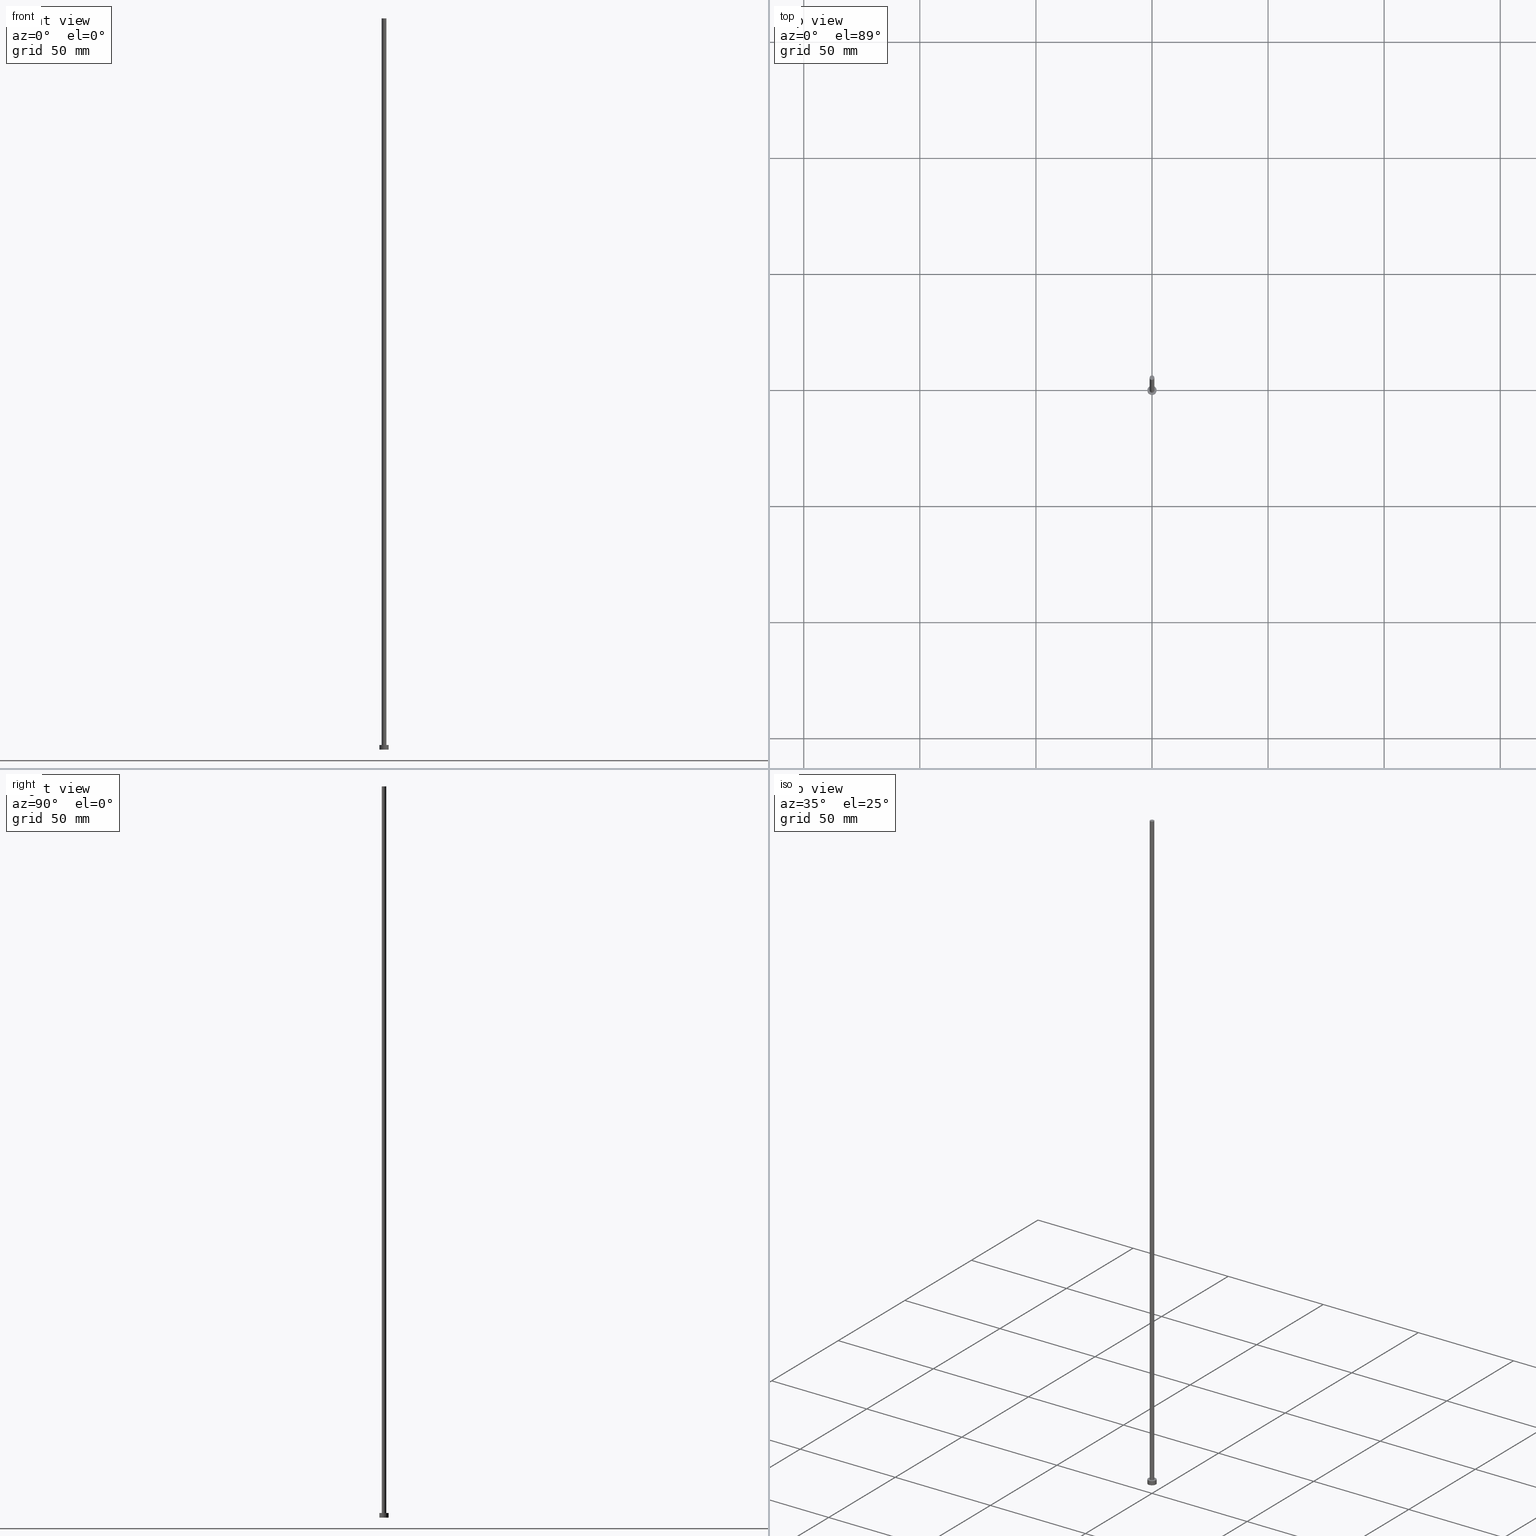
[diagram: canonical four-view strip — front | top / right | iso, engineering-drawing reading convention]
A machine part, canonical four-view strip (front | top / right | iso — engineering-drawing reading convention). The complete STEP part file that produces these views, byte-faithful:
ISO-10303-21;
HEADER;
FILE_DESCRIPTION (( 'STEP AP203' ),
    '1' );
FILE_NAME ('3bc7.STEP',
    '2023-02-13T15:59:04',
    ( '' ),
    ( '' ),
    'SwSTEP 2.0',
    'SolidWorks 2019',
    '' );
FILE_SCHEMA (( 'CONFIG_CONTROL_DESIGN' ));
ENDSEC;

DATA;
#1 = DIRECTION ( 'NONE',  ( -0.000000000000000000, -0.000000000000000000, -1.000000000000000000 ) ) ;
#2 = APPROVAL_PERSON_ORGANIZATION ( #114, #113, #96 ) ;
#3 = CARTESIAN_POINT ( 'NONE',  ( 1.000000000000000000, 1.224646799147353207E-16, 315.0000000000000000 ) ) ;
#4 = DATE_TIME_ROLE ( 'classification_date' ) ;
#5 = ADVANCED_FACE ( 'NONE', ( #126 ), #123, .F. ) ;
#6 = LOCAL_TIME ( 16, 59, 4.000000000000000000, #30 ) ;
#7 = CARTESIAN_POINT ( 'NONE',  ( -2.000000000000000000, 0.000000000000000000, 0.000000000000000000 ) ) ;
#8 = CIRCLE ( 'NONE', #194, 2.000000000000000000 ) ;
#9 = CALENDAR_DATE ( 2023, 13, 2 ) ;
#10 = DIRECTION ( 'NONE',  ( -0.000000000000000000, -0.000000000000000000, -1.000000000000000000 ) ) ;
#11 = DIRECTION ( 'NONE',  ( -0.000000000000000000, -0.000000000000000000, -1.000000000000000000 ) ) ;
#12 = CC_DESIGN_PERSON_AND_ORGANIZATION_ASSIGNMENT ( #173, #98, ( #23 ) ) ;
#13 = FACE_OUTER_BOUND ( 'NONE', #183, .T. ) ;
#14 = DIRECTION ( 'NONE',  ( 0.000000000000000000, 0.000000000000000000, 1.000000000000000000 ) ) ;
#15 = EDGE_LOOP ( 'NONE', ( #116, #82, #224, #25 ) ) ;
#16 = PERSON_AND_ORGANIZATION ( #83, #165 ) ;
#17 = CARTESIAN_POINT ( 'NONE',  ( 0.000000000000000000, 0.000000000000000000, 0.000000000000000000 ) ) ;
#18 = CARTESIAN_POINT ( 'NONE',  ( -2.000000000000000000, 0.000000000000000000, 2.000000000000000000 ) ) ;
#19 = CARTESIAN_POINT ( 'NONE',  ( 0.000000000000000000, 0.000000000000000000, 2.000000000000000000 ) ) ;
#20 = PERSON_AND_ORGANIZATION ( #83, #165 ) ;
#21 = LINE ( 'NONE', #66, #225 ) ;
#22 = AXIS2_PLACEMENT_3D ( 'NONE', #136, #74, #217 ) ;
#23 = PRODUCT_DEFINITION ( 'NEZN�M�', '', #208, #162 ) ;
#24 = CARTESIAN_POINT ( 'NONE',  ( 0.000000000000000000, 0.000000000000000000, 2.000000000000000000 ) ) ;
#25 = ORIENTED_EDGE ( 'NONE', *, *, #68, .F. ) ;
#26 = DIRECTION ( 'NONE',  ( 1.000000000000000000, 0.000000000000000000, 0.000000000000000000 ) ) ;
#27 = CARTESIAN_POINT ( 'NONE',  ( 0.000000000000000000, 0.000000000000000000, 0.000000000000000000 ) ) ;
#28 = SHAPE_DEFINITION_REPRESENTATION ( #48, #186 ) ;
#29 = AXIS2_PLACEMENT_3D ( 'NONE', #79, #220, #31 ) ;
#30 = COORDINATED_UNIVERSAL_TIME_OFFSET ( 1, 0, .AHEAD. ) ;
#31 = DIRECTION ( 'NONE',  ( 1.000000000000000000, 0.000000000000000000, 0.000000000000000000 ) ) ;
#32 = CARTESIAN_POINT ( 'NONE',  ( 1.000000000000000000, 1.224646799147353207E-16, 2.000000000000000000 ) ) ;
#33 = EDGE_CURVE ( 'NONE', #248, #198, #21, .T. ) ;
#34 = LINE ( 'NONE', #202, #45 ) ;
#35 = FACE_OUTER_BOUND ( 'NONE', #15, .T. ) ;
#36 = APPROVAL_DATE_TIME ( #75, #113 ) ;
#37 = APPROVAL_ROLE ( '' ) ;
#38 = APPLICATION_CONTEXT ( 'configuration controlled 3d designs of mechanical parts and assemblies' ) ;
#39 = PERSON_AND_ORGANIZATION_ROLE ( 'classification_officer' ) ;
#40 = ORIENTED_EDGE ( 'NONE', *, *, #77, .T. ) ;
#41 = DIRECTION ( 'NONE',  ( 1.000000000000000000, 0.000000000000000000, 0.000000000000000000 ) ) ;
#42 = CIRCLE ( 'NONE', #29, 1.000000000000000000 ) ;
#43 = VERTEX_POINT ( 'NONE', #18 ) ;
#44 = EDGE_LOOP ( 'NONE', ( #229, #163 ) ) ;
#45 = VECTOR ( 'NONE', #81, 1000.000000000000000 ) ;
#46 = PERSON_AND_ORGANIZATION_ROLE ( 'design_owner' ) ;
#47 = CARTESIAN_POINT ( 'NONE',  ( 0.000000000000000000, 0.000000000000000000, 2.000000000000000000 ) ) ;
#48 = PRODUCT_DEFINITION_SHAPE ( 'NONE', 'NONE',  #23 ) ;
#49 = CC_DESIGN_PERSON_AND_ORGANIZATION_ASSIGNMENT ( #16, #254, ( #208 ) ) ;
#50 = CARTESIAN_POINT ( 'NONE',  ( 0.000000000000000000, 0.000000000000000000, 2.000000000000000000 ) ) ;
#51 = LOCAL_TIME ( 16, 59, 4.000000000000000000, #174 ) ;
#52 = DIRECTION ( 'NONE',  ( -0.000000000000000000, -0.000000000000000000, -1.000000000000000000 ) ) ;
#53 = CIRCLE ( 'NONE', #235, 1.000000000000000000 ) ;
#54 = DIRECTION ( 'NONE',  ( 1.000000000000000000, 0.000000000000000000, 0.000000000000000000 ) ) ;
#55 = PERSON_AND_ORGANIZATION_ROLE ( 'design_supplier' ) ;
#56 = PRODUCT_RELATED_PRODUCT_CATEGORY ( 'detail', '', ( #214 ) ) ;
#57 = CARTESIAN_POINT ( 'NONE',  ( 1.000000000000000000, 1.224646799147353207E-16, 315.0000000000000000 ) ) ;
#58 = DATE_TIME_ROLE ( 'creation_date' ) ;
#59 = AXIS2_PLACEMENT_3D ( 'NONE', #19, #93, #54 ) ;
#60 = ADVANCED_FACE ( 'NONE', ( #35 ), #247, .T. ) ;
#61 = AXIS2_PLACEMENT_3D ( 'NONE', #17, #240, #212 ) ;
#62 = PLANE ( 'NONE',  #94 ) ;
#63 = ORIENTED_EDGE ( 'NONE', *, *, #138, .F. ) ;
#64 = ORIENTED_EDGE ( 'NONE', *, *, #184, .T. ) ;
#65 = DIRECTION ( 'NONE',  ( -1.000000000000000000, 0.000000000000000000, 0.000000000000000000 ) ) ;
#66 = CARTESIAN_POINT ( 'NONE',  ( 2.000000000000000000, 2.449293598294706414E-16, 2.000000000000000000 ) ) ;
#67 = VERTEX_POINT ( 'NONE', #32 ) ;
#68 = EDGE_CURVE ( 'NONE', #43, #245, #161, .T. ) ;
#69 = SECURITY_CLASSIFICATION_LEVEL ( 'unclassified' ) ;
#70 = ORIENTED_EDGE ( 'NONE', *, *, #232, .F. ) ;
#71 = AXIS2_PLACEMENT_3D ( 'NONE', #27, #129, #90 ) ;
#72 = APPROVAL_STATUS ( 'not_yet_approved' ) ;
#73 = CARTESIAN_POINT ( 'NONE',  ( 0.000000000000000000, 0.000000000000000000, 315.0000000000000000 ) ) ;
#74 = DIRECTION ( 'NONE',  ( -0.000000000000000000, -0.000000000000000000, -1.000000000000000000 ) ) ;
#75 = DATE_AND_TIME ( #192, #51 ) ;
#76 = DIRECTION ( 'NONE',  ( 0.000000000000000000, 0.000000000000000000, 1.000000000000000000 ) ) ;
#77 = EDGE_CURVE ( 'NONE', #222, #241, #34, .T. ) ;
#78 = DIRECTION ( 'NONE',  ( 1.000000000000000000, 0.000000000000000000, -0.000000000000000000 ) ) ;
#79 = CARTESIAN_POINT ( 'NONE',  ( 0.000000000000000000, 0.000000000000000000, 315.0000000000000000 ) ) ;
#80 = APPROVAL_PERSON_ORGANIZATION ( #242, #205, #124 ) ;
#81 = DIRECTION ( 'NONE',  ( -0.000000000000000000, -0.000000000000000000, -1.000000000000000000 ) ) ;
#82 = ORIENTED_EDGE ( 'NONE', *, *, #33, .T. ) ;
#83 = PERSON ( 'NEUR�EN�', 'NEUR�EN�', 'NEUR�EN�', ('NEUR�EN�'), ('NEUR�EN�'), ('NEUR�EN�') ) ;
#84 = ORIENTED_EDGE ( 'NONE', *, *, #213, .T. ) ;
#85 = APPROVAL_PERSON_ORGANIZATION ( #230, #238, #37 ) ;
#86 = AXIS2_PLACEMENT_3D ( 'NONE', #179, #177, #78 ) ;
#87 = ORIENTED_EDGE ( 'NONE', *, *, #228, .F. ) ;
#88 = APPROVAL_STATUS ( 'not_yet_approved' ) ;
#89 = ADVANCED_FACE ( 'NONE', ( #13 ), #158, .T. ) ;
#90 = DIRECTION ( 'NONE',  ( 1.000000000000000000, 0.000000000000000000, 0.000000000000000000 ) ) ;
#91 = CARTESIAN_POINT ( 'NONE',  ( 0.000000000000000000, 0.000000000000000000, 0.000000000000000000 ) ) ;
#92 = SECURITY_CLASSIFICATION ( '', '', #69 ) ;
#93 = DIRECTION ( 'NONE',  ( 0.000000000000000000, 0.000000000000000000, 1.000000000000000000 ) ) ;
#94 = AXIS2_PLACEMENT_3D ( 'NONE', #105, #157, #102 ) ;
#95 = DIRECTION ( 'NONE',  ( -0.000000000000000000, -0.000000000000000000, -1.000000000000000000 ) ) ;
#96 = APPROVAL_ROLE ( '' ) ;
#97 = ADVANCED_FACE ( 'NONE', ( #188 ), #104, .T. ) ;
#98 = PERSON_AND_ORGANIZATION_ROLE ( 'creator' ) ;
#99 = DIRECTION ( 'NONE',  ( 1.000000000000000000, 0.000000000000000000, 0.000000000000000000 ) ) ;
#100 = AXIS2_PLACEMENT_3D ( 'NONE', #148, #191, #149 ) ;
#101 = AXIS2_PLACEMENT_3D ( 'NONE', #91, #120, #41 ) ;
#102 = DIRECTION ( 'NONE',  ( 1.000000000000000000, 0.000000000000000000, -0.000000000000000000 ) ) ;
#103 = CARTESIAN_POINT ( 'NONE',  ( -1.000000000000000000, 0.000000000000000000, 2.000000000000000000 ) ) ;
#104 = CYLINDRICAL_SURFACE ( 'NONE', #239, 2.000000000000000000 ) ;
#105 = CARTESIAN_POINT ( 'NONE',  ( 0.000000000000000000, 0.000000000000000000, 2.000000000000000000 ) ) ;
#106 = COORDINATED_UNIVERSAL_TIME_OFFSET ( 1, 0, .AHEAD. ) ;
#107 = EDGE_CURVE ( 'NONE', #245, #198, #145, .T. ) ;
#108 = APPLICATION_PROTOCOL_DEFINITION ( 'international standard', 'config_control_design', 1994, #150 ) ;
#109 = DIRECTION ( 'NONE',  ( -1.000000000000000000, 0.000000000000000000, 0.000000000000000000 ) ) ;
#110 = AXIS2_PLACEMENT_3D ( 'NONE', #137, #11, #65 ) ;
#111 = CARTESIAN_POINT ( 'NONE',  ( 2.000000000000000000, 2.449293598294706414E-16, 0.000000000000000000 ) ) ;
#112 = CIRCLE ( 'NONE', #135, 2.000000000000000000 ) ;
#113 = APPROVAL ( #140, 'NEUR�EN�' ) ;
#114 = PERSON_AND_ORGANIZATION ( #83, #165 ) ;
#115 = CIRCLE ( 'NONE', #71, 2.000000000000000000 ) ;
#116 = ORIENTED_EDGE ( 'NONE', *, *, #134, .F. ) ;
#117 = ORIENTED_EDGE ( 'NONE', *, *, #107, .T. ) ;
#118 = CC_DESIGN_APPROVAL ( #205, ( #92 ) ) ;
#119 = LOCAL_TIME ( 16, 59, 4.000000000000000000, #164 ) ;
#120 = DIRECTION ( 'NONE',  ( 0.000000000000000000, 0.000000000000000000, 1.000000000000000000 ) ) ;
#121 = EDGE_CURVE ( 'NONE', #198, #245, #115, .T. ) ;
#122 =( GEOMETRIC_REPRESENTATION_CONTEXT ( 3 ) GLOBAL_UNCERTAINTY_ASSIGNED_CONTEXT ( ( #181 ) ) GLOBAL_UNIT_ASSIGNED_CONTEXT ( ( #153, #155, #175 ) ) REPRESENTATION_CONTEXT ( 'NONE', 'WORKASPACE' ) );
#123 = PLANE ( 'NONE',  #61 ) ;
#124 = APPROVAL_ROLE ( '' ) ;
#125 = ORIENTED_EDGE ( 'NONE', *, *, #232, .T. ) ;
#126 = FACE_OUTER_BOUND ( 'NONE', #44, .T. ) ;
#127 = ORIENTED_EDGE ( 'NONE', *, *, #228, .T. ) ;
#128 = ORIENTED_EDGE ( 'NONE', *, *, #134, .T. ) ;
#129 = DIRECTION ( 'NONE',  ( 0.000000000000000000, 0.000000000000000000, 1.000000000000000000 ) ) ;
#130 = LOCAL_TIME ( 16, 59, 4.000000000000000000, #106 ) ;
#131 = DIRECTION ( 'NONE',  ( 0.000000000000000000, 0.000000000000000000, 1.000000000000000000 ) ) ;
#132 = DATE_AND_TIME ( #180, #130 ) ;
#133 = DIRECTION ( 'NONE',  ( -1.000000000000000000, 0.000000000000000000, 0.000000000000000000 ) ) ;
#134 = EDGE_CURVE ( 'NONE', #248, #43, #8, .T. ) ;
#135 = AXIS2_PLACEMENT_3D ( 'NONE', #201, #14, #99 ) ;
#136 = CARTESIAN_POINT ( 'NONE',  ( 0.000000000000000000, 0.000000000000000000, 315.0000000000000000 ) ) ;
#137 = CARTESIAN_POINT ( 'NONE',  ( 0.000000000000000000, 0.000000000000000000, 2.000000000000000000 ) ) ;
#138 = EDGE_CURVE ( 'NONE', #241, #67, #218, .T. ) ;
#139 = EDGE_LOOP ( 'NONE', ( #251, #187, #84, #178 ) ) ;
#140 = APPROVAL_STATUS ( 'not_yet_approved' ) ;
#141 = APPROVAL_DATE_TIME ( #132, #238 ) ;
#142 = APPROVAL_DATE_TIME ( #193, #205 ) ;
#143 = ORIENTED_EDGE ( 'NONE', *, *, #33, .F. ) ;
#144 = DATE_AND_TIME ( #206, #233 ) ;
#145 = CIRCLE ( 'NONE', #100, 2.000000000000000000 ) ;
#146 = DIRECTION ( 'NONE',  ( 1.000000000000000000, 0.000000000000000000, 0.000000000000000000 ) ) ;
#147 = CC_DESIGN_PERSON_AND_ORGANIZATION_ASSIGNMENT ( #199, #39, ( #92 ) ) ;
#148 = CARTESIAN_POINT ( 'NONE',  ( 0.000000000000000000, 0.000000000000000000, 0.000000000000000000 ) ) ;
#149 = DIRECTION ( 'NONE',  ( 1.000000000000000000, 0.000000000000000000, 0.000000000000000000 ) ) ;
#150 = APPLICATION_CONTEXT ( 'configuration controlled 3d designs of mechanical parts and assemblies' ) ;
#151 = CYLINDRICAL_SURFACE ( 'NONE', #22, 1.000000000000000000 ) ;
#152 = CC_DESIGN_DATE_AND_TIME_ASSIGNMENT ( #144, #4, ( #92 ) ) ;
#153 =( LENGTH_UNIT ( ) NAMED_UNIT ( * ) SI_UNIT ( .MILLI., .METRE. ) );
#154 = DATE_AND_TIME ( #9, #6 ) ;
#155 =( NAMED_UNIT ( * ) PLANE_ANGLE_UNIT ( ) SI_UNIT ( $, .RADIAN. ) );
#156 = FACE_OUTER_BOUND ( 'NONE', #237, .T. ) ;
#157 = DIRECTION ( 'NONE',  ( 0.000000000000000000, 0.000000000000000000, 1.000000000000000000 ) ) ;
#158 = PLANE ( 'NONE',  #86 ) ;
#159 = CC_DESIGN_PERSON_AND_ORGANIZATION_ASSIGNMENT ( #249, #46, ( #214 ) ) ;
#160 = FACE_BOUND ( 'NONE', #166, .T. ) ;
#161 = LINE ( 'NONE', #226, #211 ) ;
#162 = DESIGN_CONTEXT ( 'detailed design', #150, 'design' ) ;
#163 = ORIENTED_EDGE ( 'NONE', *, *, #121, .F. ) ;
#164 = COORDINATED_UNIVERSAL_TIME_OFFSET ( 1, 0, .AHEAD. ) ;
#165 = ORGANIZATION ( 'NEUR�EN�', 'NEUR�EN�', '' ) ;
#166 = EDGE_LOOP ( 'NONE', ( #63, #207 ) ) ;
#167 = EDGE_LOOP ( 'NONE', ( #143, #70, #170, #117 ) ) ;
#168 = LINE ( 'NONE', #3, #203 ) ;
#169 = CC_DESIGN_PERSON_AND_ORGANIZATION_ASSIGNMENT ( #20, #55, ( #208 ) ) ;
#170 = ORIENTED_EDGE ( 'NONE', *, *, #68, .T. ) ;
#171 = FACE_OUTER_BOUND ( 'NONE', #139, .T. ) ;
#172 = AXIS2_PLACEMENT_3D ( 'NONE', #24, #76, #26 ) ;
#173 = PERSON_AND_ORGANIZATION ( #83, #165 ) ;
#174 = COORDINATED_UNIVERSAL_TIME_OFFSET ( 1, 0, .AHEAD. ) ;
#175 =( NAMED_UNIT ( * ) SI_UNIT ( $, .STERADIAN. ) SOLID_ANGLE_UNIT ( ) );
#176 = EDGE_CURVE ( 'NONE', #227, #67, #168, .T. ) ;
#177 = DIRECTION ( 'NONE',  ( 0.000000000000000000, 0.000000000000000000, 1.000000000000000000 ) ) ;
#178 = ORIENTED_EDGE ( 'NONE', *, *, #77, .F. ) ;
#179 = CARTESIAN_POINT ( 'NONE',  ( 0.000000000000000000, 0.000000000000000000, 315.0000000000000000 ) ) ;
#180 = CALENDAR_DATE ( 2023, 13, 2 ) ;
#181 = UNCERTAINTY_MEASURE_WITH_UNIT (LENGTH_MEASURE( 1.000000000000000082E-05 ), #153, 'distance_accuracy_value', 'NONE');
#182 = CARTESIAN_POINT ( 'NONE',  ( -1.000000000000000000, 0.000000000000000000, 315.0000000000000000 ) ) ;
#183 = EDGE_LOOP ( 'NONE', ( #127, #64 ) ) ;
#184 = EDGE_CURVE ( 'NONE', #227, #222, #53, .T. ) ;
#185 = CIRCLE ( 'NONE', #172, 1.000000000000000000 ) ;
#186 = ADVANCED_BREP_SHAPE_REPRESENTATION ( '3bc7', ( #215, #101 ), #122 ) ;
#187 = ORIENTED_EDGE ( 'NONE', *, *, #176, .T. ) ;
#188 = FACE_OUTER_BOUND ( 'NONE', #167, .T. ) ;
#189 = DIRECTION ( 'NONE',  ( 0.000000000000000000, 0.000000000000000000, 1.000000000000000000 ) ) ;
#190 = CARTESIAN_POINT ( 'NONE',  ( 0.000000000000000000, 0.000000000000000000, 315.0000000000000000 ) ) ;
#191 = DIRECTION ( 'NONE',  ( 0.000000000000000000, 0.000000000000000000, 1.000000000000000000 ) ) ;
#192 = CALENDAR_DATE ( 2023, 13, 2 ) ;
#193 = DATE_AND_TIME ( #195, #119 ) ;
#194 = AXIS2_PLACEMENT_3D ( 'NONE', #47, #131, #216 ) ;
#195 = CALENDAR_DATE ( 2023, 13, 2 ) ;
#196 = CC_DESIGN_DATE_AND_TIME_ASSIGNMENT ( #154, #58, ( #23 ) ) ;
#197 = CC_DESIGN_APPROVAL ( #113, ( #208 ) ) ;
#198 = VERTEX_POINT ( 'NONE', #111 ) ;
#199 = PERSON_AND_ORGANIZATION ( #83, #165 ) ;
#200 = CC_DESIGN_APPROVAL ( #238, ( #23 ) ) ;
#201 = CARTESIAN_POINT ( 'NONE',  ( 0.000000000000000000, 0.000000000000000000, 2.000000000000000000 ) ) ;
#202 = CARTESIAN_POINT ( 'NONE',  ( -1.000000000000000000, 0.000000000000000000, 315.0000000000000000 ) ) ;
#203 = VECTOR ( 'NONE', #95, 1000.000000000000000 ) ;
#204 = CARTESIAN_POINT ( 'NONE',  ( 2.000000000000000000, 2.449293598294706414E-16, 2.000000000000000000 ) ) ;
#205 = APPROVAL ( #72, 'NEUR�EN�' ) ;
#206 = CALENDAR_DATE ( 2023, 13, 2 ) ;
#207 = ORIENTED_EDGE ( 'NONE', *, *, #213, .F. ) ;
#208 = PRODUCT_DEFINITION_FORMATION_WITH_SPECIFIED_SOURCE ( 'LIBOVOLN�', '', #214, .NOT_KNOWN. ) ;
#209 = COORDINATED_UNIVERSAL_TIME_OFFSET ( 1, 0, .AHEAD. ) ;
#210 = DIRECTION ( 'NONE',  ( -0.000000000000000000, -0.000000000000000000, -1.000000000000000000 ) ) ;
#211 = VECTOR ( 'NONE', #10, 1000.000000000000000 ) ;
#212 = DIRECTION ( 'NONE',  ( 1.000000000000000000, 0.000000000000000000, -0.000000000000000000 ) ) ;
#213 = EDGE_CURVE ( 'NONE', #67, #241, #185, .T. ) ;
#214 = PRODUCT ( '3bc7', '3bc7', '', ( #234 ) ) ;
#215 = MANIFOLD_SOLID_BREP ( 'P�idat vysunut�m3', #221 ) ;
#216 = DIRECTION ( 'NONE',  ( 1.000000000000000000, 0.000000000000000000, 0.000000000000000000 ) ) ;
#217 = DIRECTION ( 'NONE',  ( -1.000000000000000000, 0.000000000000000000, 0.000000000000000000 ) ) ;
#218 = CIRCLE ( 'NONE', #59, 1.000000000000000000 ) ;
#219 = ADVANCED_FACE ( 'NONE', ( #171 ), #255, .T. ) ;
#220 = DIRECTION ( 'NONE',  ( 0.000000000000000000, 0.000000000000000000, 1.000000000000000000 ) ) ;
#221 = CLOSED_SHELL ( 'NONE', ( #219, #60, #97, #243, #5, #246, #89 ) ) ;
#222 = VERTEX_POINT ( 'NONE', #182 ) ;
#223 = AXIS2_PLACEMENT_3D ( 'NONE', #190, #1, #133 ) ;
#224 = ORIENTED_EDGE ( 'NONE', *, *, #121, .T. ) ;
#225 = VECTOR ( 'NONE', #210, 1000.000000000000000 ) ;
#226 = CARTESIAN_POINT ( 'NONE',  ( -2.000000000000000000, 0.000000000000000000, 2.000000000000000000 ) ) ;
#227 = VERTEX_POINT ( 'NONE', #57 ) ;
#228 = EDGE_CURVE ( 'NONE', #222, #227, #42, .T. ) ;
#229 = ORIENTED_EDGE ( 'NONE', *, *, #107, .F. ) ;
#230 = PERSON_AND_ORGANIZATION ( #83, #165 ) ;
#231 = ORIENTED_EDGE ( 'NONE', *, *, #138, .T. ) ;
#232 = EDGE_CURVE ( 'NONE', #43, #248, #112, .T. ) ;
#233 = LOCAL_TIME ( 16, 59, 4.000000000000000000, #209 ) ;
#234 = MECHANICAL_CONTEXT ( 'NONE', #38, 'mechanical' ) ;
#235 = AXIS2_PLACEMENT_3D ( 'NONE', #73, #189, #146 ) ;
#236 = FACE_OUTER_BOUND ( 'NONE', #250, .T. ) ;
#237 = EDGE_LOOP ( 'NONE', ( #252, #87, #40, #231 ) ) ;
#238 = APPROVAL ( #88, 'NEUR�EN�' ) ;
#239 = AXIS2_PLACEMENT_3D ( 'NONE', #50, #52, #109 ) ;
#240 = DIRECTION ( 'NONE',  ( 0.000000000000000000, 0.000000000000000000, 1.000000000000000000 ) ) ;
#241 = VERTEX_POINT ( 'NONE', #103 ) ;
#242 = PERSON_AND_ORGANIZATION ( #83, #165 ) ;
#243 = ADVANCED_FACE ( 'NONE', ( #160, #236 ), #62, .T. ) ;
#244 = APPLICATION_PROTOCOL_DEFINITION ( 'international standard', 'config_control_design', 1994, #38 ) ;
#245 = VERTEX_POINT ( 'NONE', #7 ) ;
#246 = ADVANCED_FACE ( 'NONE', ( #156 ), #151, .T. ) ;
#247 = CYLINDRICAL_SURFACE ( 'NONE', #110, 2.000000000000000000 ) ;
#248 = VERTEX_POINT ( 'NONE', #204 ) ;
#249 = PERSON_AND_ORGANIZATION ( #83, #165 ) ;
#250 = EDGE_LOOP ( 'NONE', ( #125, #128 ) ) ;
#251 = ORIENTED_EDGE ( 'NONE', *, *, #184, .F. ) ;
#252 = ORIENTED_EDGE ( 'NONE', *, *, #176, .F. ) ;
#253 = CC_DESIGN_SECURITY_CLASSIFICATION ( #92, ( #208 ) ) ;
#254 = PERSON_AND_ORGANIZATION_ROLE ( 'creator' ) ;
#255 = CYLINDRICAL_SURFACE ( 'NONE', #223, 1.000000000000000000 ) ;
ENDSEC;
END-ISO-10303-21;
